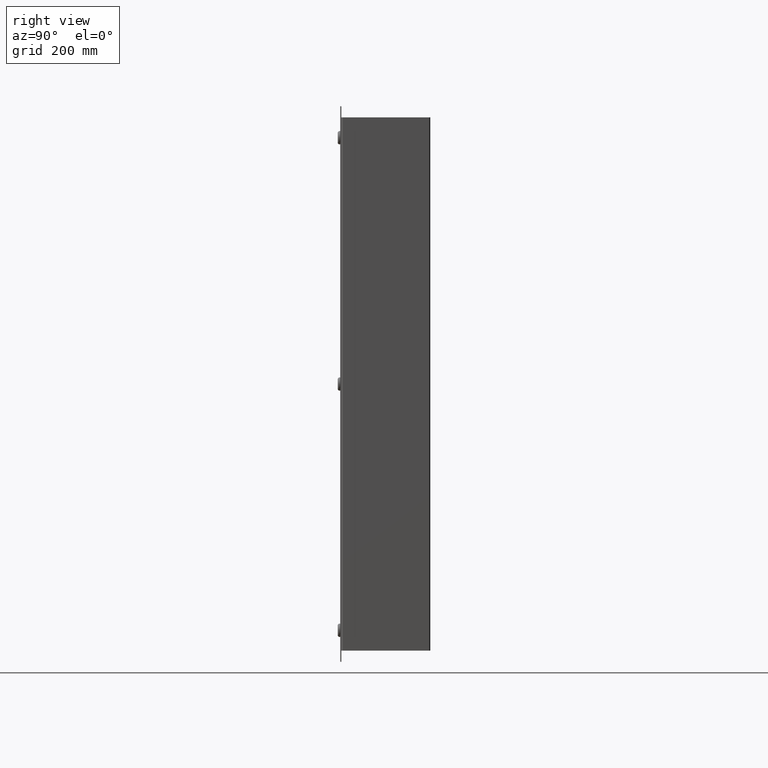
[diagram: clean part render]
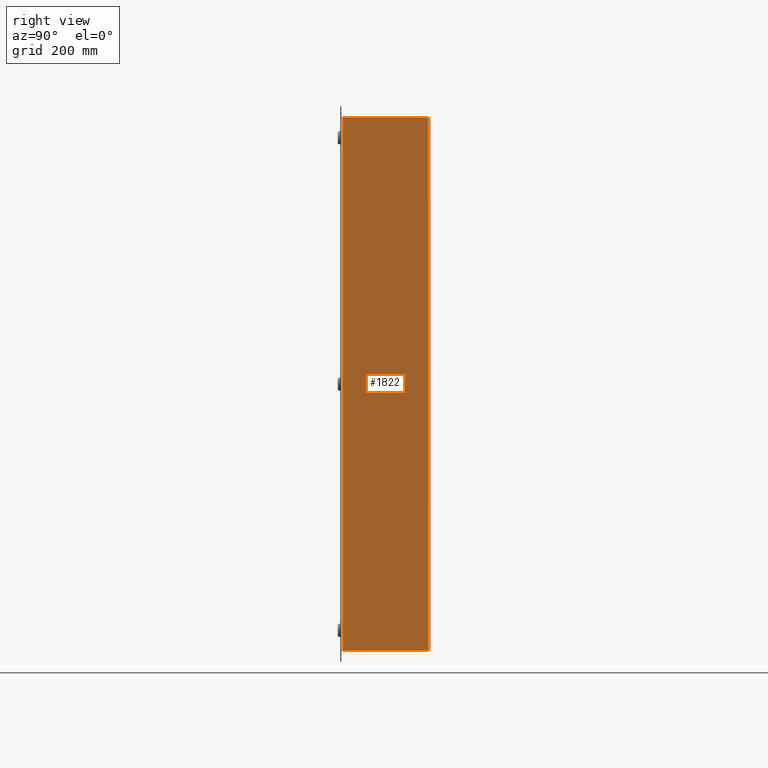
[diagram: same view with one face highlighted and labeled with its STEP entity id]
A machine part, right view. The second image highlights one B-rep face of the part: STEP entity #1822.
In plain terms, the highlighted planar face has unit normal (1, -0, 0).
Its self-contained STEP definition (entity closure, byte-faithful):
#1822 = ADVANCED_FACE( '', ( #3665 ), #3666, .T. );
#3665 = FACE_OUTER_BOUND( '', #21153, .T. );
#3666 = PLANE( '', #21154 );
#21153 = EDGE_LOOP( '', ( #36879, #36880, #36881, #36882 ) );
#21154 = AXIS2_PLACEMENT_3D( '', #36883, #36884, #36885 );
#36879 = ORIENTED_EDGE( '', *, *, #39481, .T. );
#36880 = ORIENTED_EDGE( '', *, *, #40432, .T. );
#36881 = ORIENTED_EDGE( '', *, *, #40049, .T. );
#36882 = ORIENTED_EDGE( '', *, *, #39504, .T. );
#36883 = CARTESIAN_POINT( '', ( 381.000000000000, -2.32128739161383E-014, 0.000000000000000 ) );
#36884 = DIRECTION( '', ( 1.00000000000000, -6.12323399573677E-017, 0.000000000000000 ) );
#36885 = DIRECTION( '', ( 6.12323399573677E-017, 1.00000000000000, 0.000000000000000 ) );
#39481 = EDGE_CURVE( '', #41926, #41924, #41927, .T. );
#39504 = EDGE_CURVE( '', #41962, #41926, #41963, .T. );
#40049 = EDGE_CURVE( '', #42794, #41962, #42795, .T. );
#40432 = EDGE_CURVE( '', #41924, #42794, #43315, .T. );
#41924 = VERTEX_POINT( '', #46136 );
#41926 = VERTEX_POINT( '', #46138 );
#41927 = LINE( '', #46139, #46140 );
#41962 = VERTEX_POINT( '', #46205 );
#41963 = LINE( '', #46206, #46207 );
#42794 = VERTEX_POINT( '', #48100 );
#42795 = LINE( '', #48101, #48102 );
#43315 = LINE( '', #49219, #49220 );
#46136 = CARTESIAN_POINT( '', ( 381.000000000000, -149.682200000000, 457.200000000000 ) );
#46138 = CARTESIAN_POINT( '', ( 381.000000000000, -2.71780000000000, 457.200000000000 ) );
#46139 = CARTESIAN_POINT( '', ( 381.000000000000, -1.70239013046996, 457.200000000000 ) );
#46140 = VECTOR( '', #51000, 1000.00000000000 );
#46205 = CARTESIAN_POINT( '', ( 381.000000000000, -2.71780000000000, -457.200000000000 ) );
#46206 = CARTESIAN_POINT( '', ( 381.000000000000, -2.71780000000000, -457.200000000000 ) );
#46207 = VECTOR( '', #51020, 1000.00000000000 );
#48100 = CARTESIAN_POINT( '', ( 381.000000000000, -149.682200000000, -457.200000000000 ) );
#48101 = CARTESIAN_POINT( '', ( 381.000000000000, -1.70239013046996, -457.200000000000 ) );
#48102 = VECTOR( '', #51556, 1000.00000000000 );
#49219 = CARTESIAN_POINT( '', ( 381.000000000000, -149.682200000000, 457.200000000000 ) );
#49220 = VECTOR( '', #51928, 1000.00000000000 );
#51000 = DIRECTION( '', ( -6.12323399573677E-017, -1.00000000000000, 7.36722384373819E-016 ) );
#51020 = DIRECTION( '', ( 0.000000000000000, 0.000000000000000, 1.00000000000000 ) );
#51556 = DIRECTION( '', ( 6.12323399573677E-017, 1.00000000000000, 0.000000000000000 ) );
#51928 = DIRECTION( '', ( 0.000000000000000, 0.000000000000000, -1.00000000000000 ) );